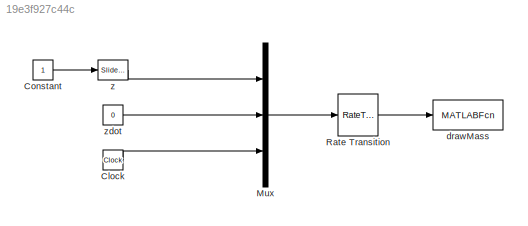
MODEL slx_19e3f927c44c
KIND model
CONFIG AbsTol = auto
CONFIG EnableMultiTasking = off
CONFIG FixedStep = auto
CONFIG MaxStep = 0.1
CONFIG MinStep = auto
CONFIG RelTol = 1e-3
CONFIG SampleTimeConstraint = Unconstrained
CONFIG Solver = ode45
CONFIG SolverName = ode45
CONFIG StartTime = 0.0
CONFIG StopTime = 10000
BLOCK [Clock] Clock
BLOCK [Constant] Constant
BLOCK [Mux] Mux
  DisplayOption = bar
  Inputs = 3
  Ports = [3, 1]
BLOCK [RateTransition] Rate Transition
BLOCK [MATLABFcn] drawMass
  MATLABFcn = mass_spring_damper_animation(u)
  OutputDimensions = 0
  Ports = [1]
BLOCK [Reference] z   REF=simulink/Math
Operations/Slider
Gain
  Ports = [1, 1]
  SourceBlock = simulink/Math\nOperations/Slider\nGain
  SourceProductBaseCode = SL
  SourceProductName = Simulink
  SourceType = Slider Gain
BLOCK [Constant] zdot
  Value = 0
LINE Clock:1 -> Mux:3
LINE Constant:1 -> z :1
LINE Mux:1 -> Rate Transition:1
LINE Rate Transition:1 -> drawMass:1
LINE z :1 -> Mux:1
LINE zdot:1 -> Mux:2
